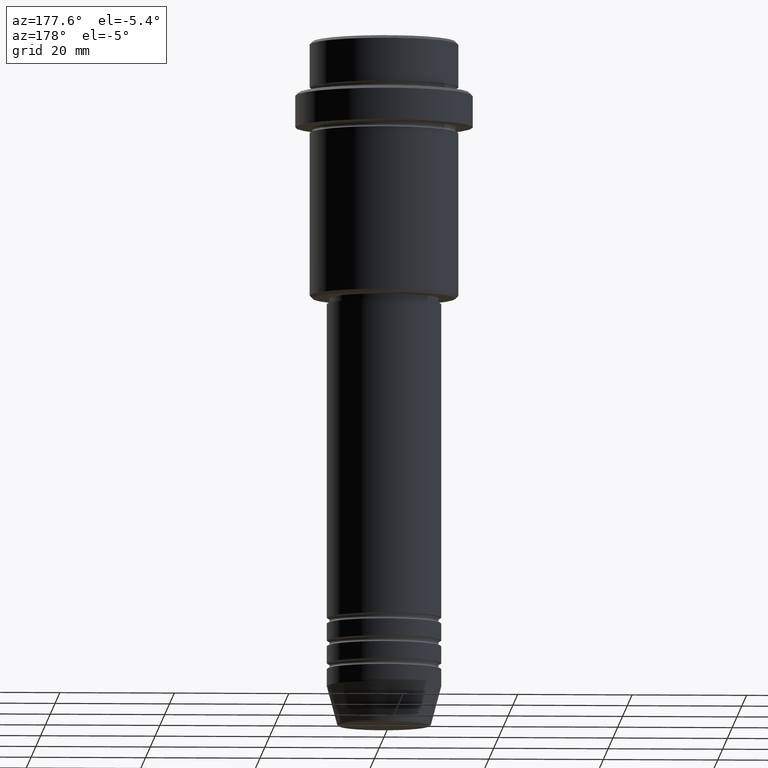
[diagram: clean part render]
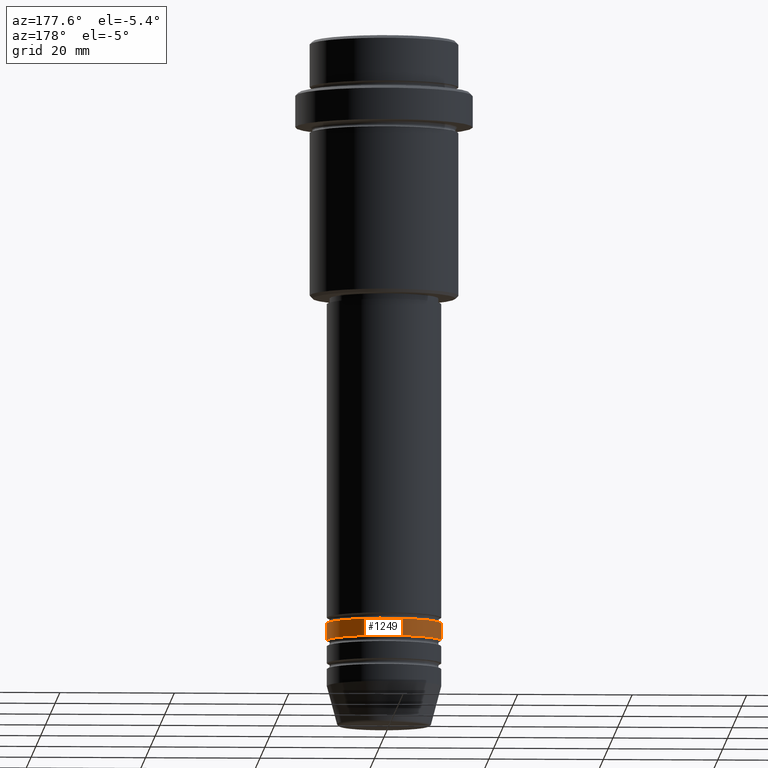
[diagram: same view with one face highlighted and labeled with its STEP entity id]
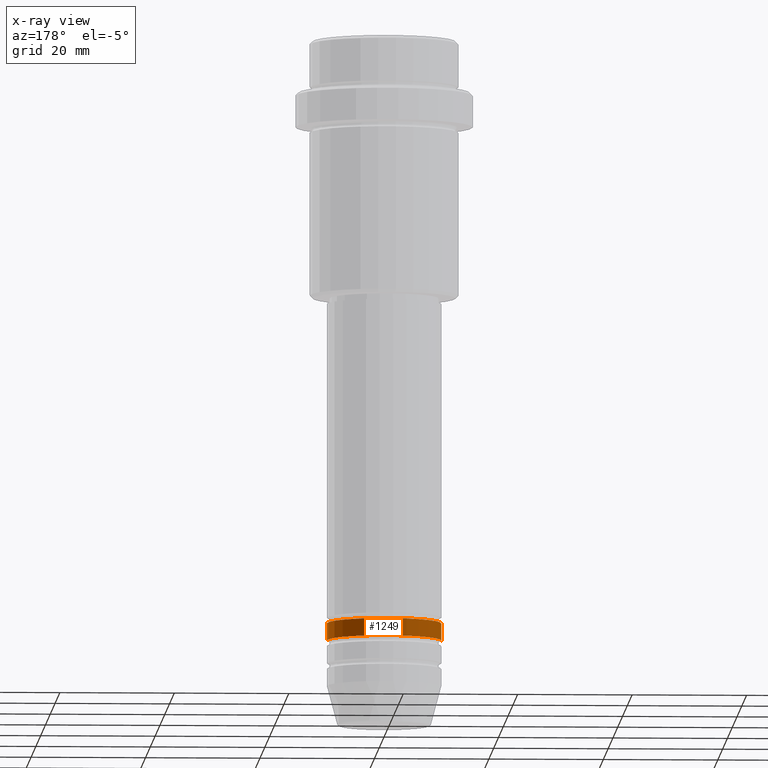
[diagram: x-ray of the same camera — body ghosted, the highlighted face saturated]
A machine part, auxiliary view. The second image highlights one B-rep face of the part: STEP entity #1249.
The next image is the same camera in x-ray: the body ghosted, the highlighted face saturated — about 0% of this face is hidden behind the body in this view.
In plain terms, the highlighted cylindrical surface (partial cylindrical patch) has radius 10 mm, axis along (-0, -0, 1).
Its self-contained STEP definition (entity closure, byte-faithful):
#40 = DIRECTION ( 'NONE',  ( -0.000000000000000000, -0.000000000000000000, 1.000000000000000000 ) ) ;
#79 = VECTOR ( 'NONE', #40, 1000.000000000000000 ) ;
#188 = CARTESIAN_POINT ( 'NONE',  ( 0.000000000000000000, 0.000000000000000000, -104.9999999999998721 ) ) ;
#203 = CARTESIAN_POINT ( 'NONE',  ( 10.00000000000000000, 0.000000000000000000, -101.9999999999998721 ) ) ;
#233 = ORIENTED_EDGE ( 'NONE', *, *, #473, .T. ) ;
#278 = EDGE_CURVE ( 'NONE', #824, #643, #891, .T. ) ;
#305 = LINE ( 'NONE', #1075, #1272 ) ;
#422 = FACE_OUTER_BOUND ( 'NONE', #1241, .T. ) ;
#427 = EDGE_CURVE ( 'NONE', #465, #677, #579, .T. ) ;
#431 = DIRECTION ( 'NONE',  ( -0.000000000000000000, -0.000000000000000000, 1.000000000000000000 ) ) ;
#435 = CARTESIAN_POINT ( 'NONE',  ( 0.000000000000000000, 0.000000000000000000, -101.9999999999998721 ) ) ;
#465 = VERTEX_POINT ( 'NONE', #1288 ) ;
#473 = EDGE_CURVE ( 'NONE', #677, #643, #975, .T. ) ;
#504 = ORIENTED_EDGE ( 'NONE', *, *, #278, .F. ) ;
#527 = AXIS2_PLACEMENT_3D ( 'NONE', #1403, #431, #1198 ) ;
#553 = AXIS2_PLACEMENT_3D ( 'NONE', #188, #861, #748 ) ;
#579 = CIRCLE ( 'NONE', #553, 10.00000000000000000 ) ;
#643 = VERTEX_POINT ( 'NONE', #817 ) ;
#677 = VERTEX_POINT ( 'NONE', #1029 ) ;
#695 = CARTESIAN_POINT ( 'NONE',  ( -10.00000000000000000, 1.224646799147353256E-15, 0.000000000000000000 ) ) ;
#748 = DIRECTION ( 'NONE',  ( 1.000000000000000000, 0.000000000000000000, 0.000000000000000000 ) ) ;
#817 = CARTESIAN_POINT ( 'NONE',  ( -10.00000000000000000, 1.224646799147353256E-15, -101.9999999999998721 ) ) ;
#824 = VERTEX_POINT ( 'NONE', #203 ) ;
#861 = DIRECTION ( 'NONE',  ( -0.000000000000000000, -0.000000000000000000, 1.000000000000000000 ) ) ;
#867 = DIRECTION ( 'NONE',  ( -0.000000000000000000, -0.000000000000000000, 1.000000000000000000 ) ) ;
#891 = CIRCLE ( 'NONE', #1211, 10.00000000000000000 ) ;
#950 = ORIENTED_EDGE ( 'NONE', *, *, #1338, .F. ) ;
#970 = ORIENTED_EDGE ( 'NONE', *, *, #427, .T. ) ;
#975 = LINE ( 'NONE', #695, #79 ) ;
#1029 = CARTESIAN_POINT ( 'NONE',  ( -10.00000000000000000, 1.224646799147353256E-15, -104.9999999999998721 ) ) ;
#1075 = CARTESIAN_POINT ( 'NONE',  ( 10.00000000000000000, 0.000000000000000000, 0.000000000000000000 ) ) ;
#1083 = DIRECTION ( 'NONE',  ( 1.000000000000000000, 0.000000000000000000, 0.000000000000000000 ) ) ;
#1091 = CYLINDRICAL_SURFACE ( 'NONE', #527, 10.00000000000000000 ) ;
#1198 = DIRECTION ( 'NONE',  ( 1.000000000000000000, 0.000000000000000000, 0.000000000000000000 ) ) ;
#1211 = AXIS2_PLACEMENT_3D ( 'NONE', #435, #867, #1083 ) ;
#1241 = EDGE_LOOP ( 'NONE', ( #970, #233, #504, #950 ) ) ;
#1249 = ADVANCED_FACE ( 'NONE', ( #422 ), #1091, .T. ) ;
#1272 = VECTOR ( 'NONE', #1307, 1000.000000000000000 ) ;
#1288 = CARTESIAN_POINT ( 'NONE',  ( 10.00000000000000000, 0.000000000000000000, -104.9999999999998721 ) ) ;
#1307 = DIRECTION ( 'NONE',  ( -0.000000000000000000, -0.000000000000000000, 1.000000000000000000 ) ) ;
#1338 = EDGE_CURVE ( 'NONE', #465, #824, #305, .T. ) ;
#1403 = CARTESIAN_POINT ( 'NONE',  ( 0.000000000000000000, 0.000000000000000000, 0.000000000000000000 ) ) ;